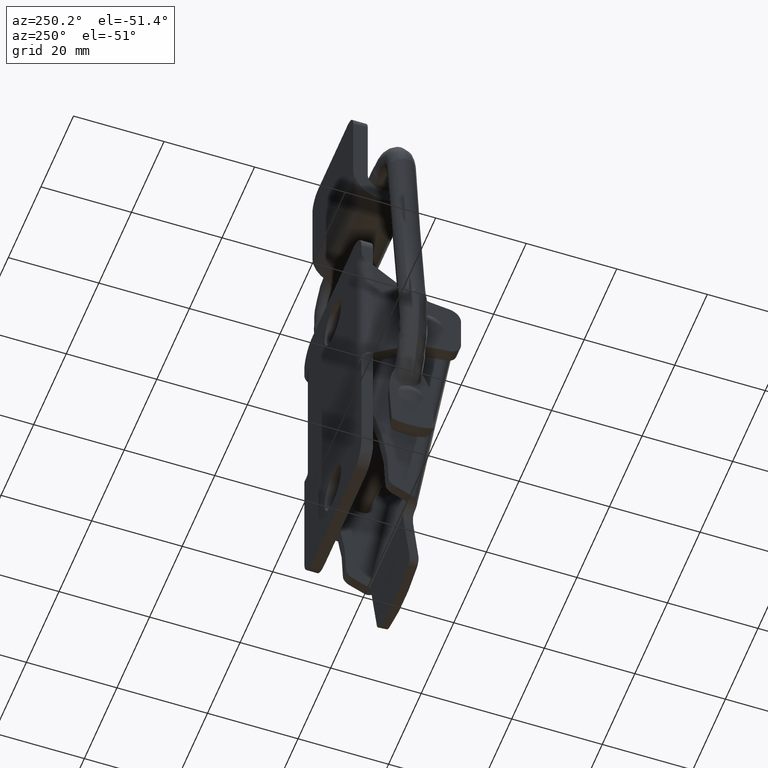
[diagram: clean part render]
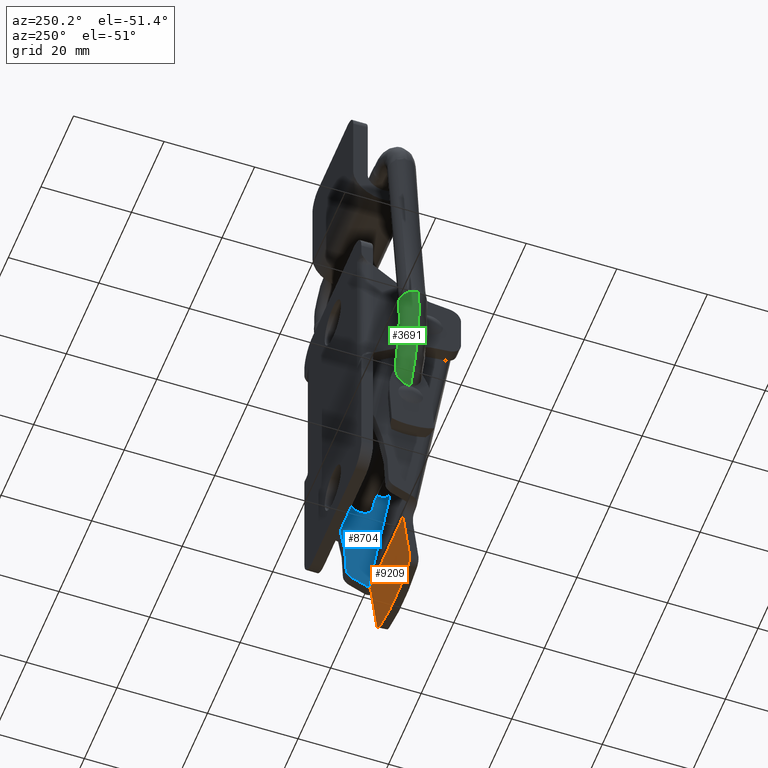
[diagram: same view with three faces highlighted in distinct colors, each labeled with its STEP entity id]
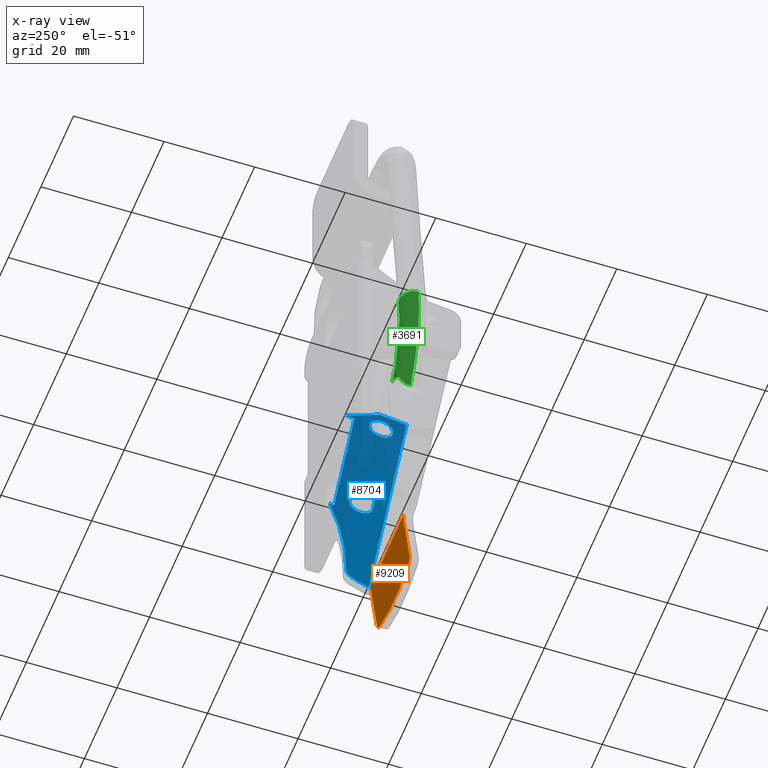
[diagram: x-ray of the same camera — body ghosted, the three highlighted faces saturated]
A machine part, auxiliary view with three faces highlighted in distinct colors.
The next image is the same camera in x-ray (body ghosted, the three faces saturated) — at least one of them is partly hidden behind the body in this view.
Their STEP definitions:

[orange] entity #9209 — the highlighted face is a freeform B-spline surface patch.
#6724=CARTESIAN_POINT('',(-16.485906877645100,10.0,-118.138815475347600));
#6725=VERTEX_POINT('',#6724);
#6731=CARTESIAN_POINT('',(-16.983020094316050,8.571428571428358,-119.989855139310390));
#6732=VERTEX_POINT('',#6731);
#6733=CARTESIAN_POINT('',(-16.983020094316050,8.571428571428358,-119.989855139310390));
#6734=CARTESIAN_POINT('',(-16.872550490607612,9.999999999999998,-119.578512991764580));
#6735=CARTESIAN_POINT('',(-16.485906877645100,10.0,-118.138815475347600));
#6743=(BOUNDED_CURVE()B_SPLINE_CURVE(2,(#6733,#6734,#6735),.UNSPECIFIED.,.F.,.U.)CURVE()GEOMETRIC_REPRESENTATION_ITEM()QUASI_UNIFORM_CURVE()RATIONAL_B_SPLINE_CURVE((1.0,0.801783725737266,1.0))REPRESENTATION_ITEM(''));
#6744=EDGE_CURVE('',#6732,#6725,#6743,.T.);
#6785=CARTESIAN_POINT('',(-16.983020094316050,-8.571428571428401,-119.989855139310390));
#6786=VERTEX_POINT('',#6785);
#6792=CARTESIAN_POINT('',(-16.485906877645149,-10.0,-118.138815475347800));
#6793=VERTEX_POINT('',#6792);
#6794=CARTESIAN_POINT('',(-16.485906877645149,-10.0,-118.138815475347800));
#6795=CARTESIAN_POINT('',(-16.872550490607622,-9.999999999999748,-119.578512991764630));
#6796=CARTESIAN_POINT('',(-16.983020094316050,-8.571428571428401,-119.989855139310390));
#6804=(BOUNDED_CURVE()B_SPLINE_CURVE(2,(#6794,#6795,#6796),.UNSPECIFIED.,.F.,.U.)CURVE()GEOMETRIC_REPRESENTATION_ITEM()QUASI_UNIFORM_CURVE()RATIONAL_B_SPLINE_CURVE((1.0,0.801783725737323,1.0))REPRESENTATION_ITEM(''));
#6805=EDGE_CURVE('',#6793,#6786,#6804,.T.);
#6829=CARTESIAN_POINT('',(-16.983020094316029,-8.571428571428434,-119.989855139310510));
#6830=CARTESIAN_POINT('',(-17.645837716544722,-2.775558E-014,-122.457908024594860));
#6831=CARTESIAN_POINT('',(-16.983020094316039,8.571428571428395,-119.989855139310510));
#6839=(BOUNDED_CURVE()B_SPLINE_CURVE(2,(#6829,#6830,#6831),.UNSPECIFIED.,.F.,.U.)CURVE()GEOMETRIC_REPRESENTATION_ITEM()QUASI_UNIFORM_CURVE()RATIONAL_B_SPLINE_CURVE((1.0,0.958314847499911,1.0))REPRESENTATION_ITEM(''));
#6840=EDGE_CURVE('',#6786,#6732,#6839,.T.);
#6874=CARTESIAN_POINT('',(-13.745348477425440,10.0,-107.934133463108000));
#6875=VERTEX_POINT('',#6874);
#6876=CARTESIAN_POINT('',(-13.334221545876860,10.304535440719620,-106.403270408781200));
#6877=VERTEX_POINT('',#6876);
#6878=CARTESIAN_POINT('',(-13.745348477425480,10.0,-107.934133463108000));
#6879=CARTESIAN_POINT('',(-13.531650173245616,10.0,-107.138411233457450));
#6880=CARTESIAN_POINT('',(-13.334221545876879,10.304535440719640,-106.403270408781200));
#6888=(BOUNDED_CURVE()B_SPLINE_CURVE(2,(#6878,#6879,#6880),.UNSPECIFIED.,.F.,.U.)CURVE()GEOMETRIC_REPRESENTATION_ITEM()QUASI_UNIFORM_CURVE()RATIONAL_B_SPLINE_CURVE((1.0,0.980781866629900,1.0))REPRESENTATION_ITEM(''));
#6889=EDGE_CURVE('',#6875,#6877,#6888,.T.);
#7011=CARTESIAN_POINT('',(-13.334221545876860,-10.304535440719620,-106.403270408781200));
#7012=VERTEX_POINT('',#7011);
#7111=CARTESIAN_POINT('',(-13.745348477425440,-10.0,-107.934133463108000));
#7112=VERTEX_POINT('',#7111);
#7118=CARTESIAN_POINT('',(-13.334221545876890,-10.304535440719620,-106.403270408781300));
#7119=CARTESIAN_POINT('',(-13.531650173245628,-10.0,-107.138411233457460));
#7120=CARTESIAN_POINT('',(-13.745348477425480,-10.0,-107.934133463108000));
#7128=(BOUNDED_CURVE()B_SPLINE_CURVE(2,(#7118,#7119,#7120),.UNSPECIFIED.,.F.,.U.)CURVE()GEOMETRIC_REPRESENTATION_ITEM()QUASI_UNIFORM_CURVE()RATIONAL_B_SPLINE_CURVE((1.0,0.980781866629906,1.0))REPRESENTATION_ITEM(''));
#7129=EDGE_CURVE('',#7012,#7112,#7128,.T.);
#7748=CARTESIAN_POINT('',(-13.334221545876860,10.304535440719620,-106.403270408781200));
#7749=CARTESIAN_POINT('',(-13.334221545876860,-10.304535440719620,-106.403270408781200));
#7750=QUASI_UNIFORM_CURVE('',1,(#7748,#7749),.UNSPECIFIED.,.F.,.U.);
#7751=EDGE_CURVE('',#6877,#7012,#7750,.T.);
#9165=CARTESIAN_POINT('',(-13.745348477425440,-10.0,-107.934133463108000));
#9166=CARTESIAN_POINT('',(-16.485906877645149,-10.0,-118.138815475347800));
#9167=QUASI_UNIFORM_CURVE('',1,(#9165,#9166),.UNSPECIFIED.,.F.,.U.);
#9168=EDGE_CURVE('',#7112,#6793,#9167,.T.);
#9179=CARTESIAN_POINT('',(-13.745348477425440,10.0,-107.934133463108000));
#9180=CARTESIAN_POINT('',(-16.485906877645100,10.0,-118.138815475347600));
#9181=QUASI_UNIFORM_CURVE('',1,(#9179,#9180),.UNSPECIFIED.,.F.,.U.);
#9182=EDGE_CURVE('',#6875,#6725,#9181,.T.);
#9194=CARTESIAN_POINT('',(-13.135761642037441,-11.333959071692769,-105.664289546086000));
#9195=CARTESIAN_POINT('',(-17.505834185407050,-11.333959071692769,-121.936594004889500));
#9196=CARTESIAN_POINT('',(-13.135761642037441,11.333959071692769,-105.664289546086000));
#9197=CARTESIAN_POINT('',(-17.505834185407050,11.333959071692769,-121.936594004889500));
#9198=B_SPLINE_SURFACE_WITH_KNOTS('',1,1,((#9194,#9196),(#9195,#9197)),.UNSPECIFIED.,.F.,.F.,.U.,(2,2),(2,2),(0.0,16.848899858278831),(0.0,22.667918143385538),.UNSPECIFIED.);
#9199=ORIENTED_EDGE('',*,*,#9168,.T.);
#9200=ORIENTED_EDGE('',*,*,#6805,.T.);
#9201=ORIENTED_EDGE('',*,*,#6840,.T.);
#9202=ORIENTED_EDGE('',*,*,#6744,.T.);
#9203=ORIENTED_EDGE('',*,*,#9182,.F.);
#9204=ORIENTED_EDGE('',*,*,#6889,.T.);
#9205=ORIENTED_EDGE('',*,*,#7751,.T.);
#9206=ORIENTED_EDGE('',*,*,#7129,.T.);
#9207=EDGE_LOOP('',(#9199,#9200,#9201,#9202,#9203,#9204,#9205,#9206));
#9208=FACE_OUTER_BOUND('',#9207,.T.);
#9209=ADVANCED_FACE('',(#9208),#9198,.T.);

[blue] entity #8704 — the highlighted face is a freeform B-spline surface patch.
#6529=CARTESIAN_POINT('',(-10.881824768468690,-12.0,-49.893110989245933));
#6530=VERTEX_POINT('',#6529);
#6531=CARTESIAN_POINT('',(-8.300000000000001,-12.0,-52.799999999999997));
#6532=VERTEX_POINT('',#6531);
#6533=CARTESIAN_POINT('',(-10.881824768468690,-12.000000000000004,-49.893110989245933));
#6534=CARTESIAN_POINT('',(-10.900000000000004,-11.999999999999998,-50.046017288251711));
#6535=CARTESIAN_POINT('',(-10.900000000000000,-12.0,-50.200000000000003));
#6536=CARTESIAN_POINT('',(-10.900000000000000,-12.0,-52.799999999999990));
#6537=CARTESIAN_POINT('',(-8.300000000000001,-12.0,-52.799999999999997));
#6545=(BOUNDED_CURVE()B_SPLINE_CURVE(2,(#6533,#6534,#6535,#6536,#6537),.UNSPECIFIED.,.F.,.U.)B_SPLINE_CURVE_WITH_KNOTS((3,2,3),(0.229562473431006,0.250000000000000,0.500000000000000),.UNSPECIFIED.)CURVE()GEOMETRIC_REPRESENTATION_ITEM()RATIONAL_B_SPLINE_CURVE((0.956026754021991,0.976055948234488,1.0,0.707106781186548,1.0))REPRESENTATION_ITEM(''));
#6546=EDGE_CURVE('',#6530,#6532,#6545,.T.);
#6587=CARTESIAN_POINT('',(-5.704849524143498,-12.0,-50.358726203450367));
#6588=VERTEX_POINT('',#6587);
#6594=CARTESIAN_POINT('',(-8.300000000000001,-12.0,-52.799999999999997));
#6595=CARTESIAN_POINT('',(-5.854164227291096,-12.000000000000002,-52.799999999999983));
#6596=CARTESIAN_POINT('',(-5.704849524143498,-12.000000000000002,-50.358726203450374));
#6604=(BOUNDED_CURVE()B_SPLINE_CURVE(2,(#6594,#6595,#6596),.UNSPECIFIED.,.F.,.U.)B_SPLINE_CURVE_WITH_KNOTS((3,3),(0.500000000000000,0.739332962154237),.UNSPECIFIED.)CURVE()GEOMETRIC_REPRESENTATION_ITEM()RATIONAL_B_SPLINE_CURVE((1.0,0.719603993385949,0.976072041485177))REPRESENTATION_ITEM(''));
#6605=EDGE_CURVE('',#6532,#6588,#6604,.T.);
#6628=CARTESIAN_POINT('',(-8.300000000000001,-12.0,-47.600000000000001));
#6629=VERTEX_POINT('',#6628);
#6630=CARTESIAN_POINT('',(-8.300000000000001,-12.0,-47.600000000000001));
#6631=CARTESIAN_POINT('',(-10.609253766308923,-12.0,-47.600000000000001));
#6632=CARTESIAN_POINT('',(-10.881824768468691,-12.000000000000005,-49.893110989245933));
#6640=(BOUNDED_CURVE()B_SPLINE_CURVE(2,(#6630,#6631,#6632),.UNSPECIFIED.,.F.,.U.)B_SPLINE_CURVE_WITH_KNOTS((3,3),(0.0,0.229562473431006),.UNSPECIFIED.)CURVE()GEOMETRIC_REPRESENTATION_ITEM()RATIONAL_B_SPLINE_CURVE((1.0,0.731050832952060,0.956026754021991))REPRESENTATION_ITEM(''));
#6641=EDGE_CURVE('',#6629,#6530,#6640,.T.);
#6643=CARTESIAN_POINT('',(-5.704849524143498,-12.000000000000002,-50.358726203450381));
#6644=CARTESIAN_POINT('',(-5.700000000000000,-12.000000000000004,-50.279437185237938));
#6645=CARTESIAN_POINT('',(-5.700000000000000,-12.0,-50.200000000000003));
#6646=CARTESIAN_POINT('',(-5.699999999999999,-12.0,-47.600000000000001));
#6647=CARTESIAN_POINT('',(-8.300000000000001,-12.0,-47.600000000000001));
#6655=(BOUNDED_CURVE()B_SPLINE_CURVE(2,(#6643,#6644,#6645,#6646,#6647),.UNSPECIFIED.,.F.,.U.)B_SPLINE_CURVE_WITH_KNOTS((3,2,3),(0.739332962154238,0.750000000000000,1.0),.UNSPECIFIED.)CURVE()GEOMETRIC_REPRESENTATION_ITEM()RATIONAL_B_SPLINE_CURVE((0.976072041485178,0.987502787800599,1.0,0.707106781186548,1.0))REPRESENTATION_ITEM(''));
#6656=EDGE_CURVE('',#6588,#6629,#6655,.T.);
#7209=CARTESIAN_POINT('',(-7.857875644552469,-12.0,-100.836162001379190));
#7210=VERTEX_POINT('',#7209);
#7211=CARTESIAN_POINT('',(-9.659620469921661,-12.0,-102.911410402462390));
#7212=VERTEX_POINT('',#7211);
#7213=CARTESIAN_POINT('',(-7.857875644552457,-12.0,-100.836162001379190));
#7214=CARTESIAN_POINT('',(-8.076036906268211,-11.999999999999998,-102.466520682688470));
#7215=CARTESIAN_POINT('',(-9.659620469921638,-12.0,-102.911410402462490));
#7223=(BOUNDED_CURVE()B_SPLINE_CURVE(2,(#7213,#7214,#7215),.UNSPECIFIED.,.F.,.U.)CURVE()GEOMETRIC_REPRESENTATION_ITEM()QUASI_UNIFORM_CURVE()RATIONAL_B_SPLINE_CURVE((1.0,0.835393551760046,1.0))REPRESENTATION_ITEM(''));
#7224=EDGE_CURVE('',#7210,#7212,#7223,.T.);
#7513=CARTESIAN_POINT('',(-5.200000000000000,-12.0,-72.700000000000003));
#7514=VERTEX_POINT('',#7513);
#7539=CARTESIAN_POINT('',(-10.400000000000000,-12.0,-72.700000000000003));
#7540=VERTEX_POINT('',#7539);
#7546=CARTESIAN_POINT('',(-5.200000000000000,-12.0,-72.700000000000003));
#7547=CARTESIAN_POINT('',(-5.199999999999999,-12.0,-70.099999999999994));
#7548=CARTESIAN_POINT('',(-7.800000000000000,-12.0,-70.099999999999994));
#7549=CARTESIAN_POINT('',(-10.400000000000000,-12.0,-70.099999999999994));
#7550=CARTESIAN_POINT('',(-10.400000000000000,-12.0,-72.700000000000003));
#7558=(BOUNDED_CURVE()B_SPLINE_CURVE(2,(#7546,#7547,#7548,#7549,#7550),.UNSPECIFIED.,.F.,.U.)B_SPLINE_CURVE_WITH_KNOTS((3,2,3),(0.0,0.500000000000000,1.0),.UNSPECIFIED.)CURVE()GEOMETRIC_REPRESENTATION_ITEM()RATIONAL_B_SPLINE_CURVE((1.0,0.707106781186548,1.0,0.707106781186548,1.0))REPRESENTATION_ITEM(''));
#7559=EDGE_CURVE('',#7514,#7540,#7558,.T.);
#7577=CARTESIAN_POINT('',(-10.400000000000000,-12.0,-77.700000000000003));
#7578=VERTEX_POINT('',#7577);
#7584=CARTESIAN_POINT('',(-10.400000000000000,-12.0,-72.700000000000003));
#7585=CARTESIAN_POINT('',(-10.400000000000000,-12.0,-77.700000000000003));
#7586=QUASI_UNIFORM_CURVE('',1,(#7584,#7585),.UNSPECIFIED.,.F.,.U.);
#7587=EDGE_CURVE('',#7540,#7578,#7586,.T.);
#7628=CARTESIAN_POINT('',(-5.200000000000000,-12.0,-77.700000000000003));
#7629=VERTEX_POINT('',#7628);
#7635=CARTESIAN_POINT('',(-10.400000000000000,-12.0,-77.700000000000003));
#7636=CARTESIAN_POINT('',(-10.400000000000000,-12.0,-80.300000000000011));
#7637=CARTESIAN_POINT('',(-7.800000000000000,-12.0,-80.300000000000011));
#7638=CARTESIAN_POINT('',(-5.199999999999999,-12.0,-80.300000000000011));
#7639=CARTESIAN_POINT('',(-5.200000000000000,-12.0,-77.700000000000003));
#7647=(BOUNDED_CURVE()B_SPLINE_CURVE(2,(#7635,#7636,#7637,#7638,#7639),.UNSPECIFIED.,.F.,.U.)B_SPLINE_CURVE_WITH_KNOTS((3,2,3),(0.0,0.500000000000000,1.0),.UNSPECIFIED.)CURVE()GEOMETRIC_REPRESENTATION_ITEM()RATIONAL_B_SPLINE_CURVE((1.0,0.707106781186548,1.0,0.707106781186548,1.0))REPRESENTATION_ITEM(''));
#7648=EDGE_CURVE('',#7578,#7629,#7647,.T.);
#7665=CARTESIAN_POINT('',(-5.200000000000000,-12.0,-77.700000000000003));
#7666=CARTESIAN_POINT('',(-5.200000000000000,-12.0,-72.700000000000003));
#7667=QUASI_UNIFORM_CURVE('',1,(#7665,#7666),.UNSPECIFIED.,.F.,.U.);
#7668=EDGE_CURVE('',#7629,#7514,#7667,.T.);
#7868=CARTESIAN_POINT('',(-0.299999999999955,-12.0,-50.200000000000003));
#7869=VERTEX_POINT('',#7868);
#8126=CARTESIAN_POINT('',(-2.299999999999955,-12.0,-81.199999999999989));
#8127=VERTEX_POINT('',#8126);
#8133=CARTESIAN_POINT('',(-2.299999999999970,-12.0,-50.200000000000003));
#8134=VERTEX_POINT('',#8133);
#8135=CARTESIAN_POINT('',(-2.299999999999955,-12.0,-81.199999999999989));
#8136=CARTESIAN_POINT('',(-2.299999999999970,-12.0,-50.200000000000003));
#8137=QUASI_UNIFORM_CURVE('',1,(#8135,#8136),.UNSPECIFIED.,.F.,.U.);
#8138=EDGE_CURVE('',#8127,#8134,#8137,.T.);
#8155=CARTESIAN_POINT('',(-0.299999999999955,-12.0,-50.200000000000003));
#8156=CARTESIAN_POINT('',(-2.299999999999970,-12.0,-50.200000000000003));
#8157=QUASI_UNIFORM_CURVE('',1,(#8155,#8156),.UNSPECIFIED.,.F.,.U.);
#8158=EDGE_CURVE('',#7869,#8134,#8157,.T.);
#8636=CARTESIAN_POINT('',(-13.949350218872880,-12.0,-42.791205693047182));
#8637=CARTESIAN_POINT('',(0.349350335101979,-12.0,-42.791205693047182));
#8638=CARTESIAN_POINT('',(-13.949350218872880,-12.0,-106.842929852675700));
#8639=CARTESIAN_POINT('',(0.349350335101979,-12.0,-106.842929852675700));
#8640=B_SPLINE_SURFACE_WITH_KNOTS('',1,1,((#8636,#8638),(#8637,#8639)),.UNSPECIFIED.,.F.,.F.,.U.,(2,2),(2,2),(0.0,14.298700553974861),(0.0,64.051724159628563),.UNSPECIFIED.);
#8641=CARTESIAN_POINT('',(-1.301293410527386,-12.0,-81.199999999999989));
#8642=VERTEX_POINT('',#8641);
#8643=CARTESIAN_POINT('',(-1.301293410527343,-12.0,-81.199999999999989));
#8644=CARTESIAN_POINT('',(-6.460079420146557,-11.999999999999996,-90.390177268627610));
#8645=CARTESIAN_POINT('',(-7.857875644552433,-12.0,-100.836162001379190));
#8653=(BOUNDED_CURVE()B_SPLINE_CURVE(2,(#8643,#8644,#8645),.UNSPECIFIED.,.F.,.U.)CURVE()GEOMETRIC_REPRESENTATION_ITEM()QUASI_UNIFORM_CURVE()RATIONAL_B_SPLINE_CURVE((1.0,0.982147119270524,1.0))REPRESENTATION_ITEM(''));
#8654=EDGE_CURVE('',#8642,#7210,#8653,.T.);
#8655=ORIENTED_EDGE('',*,*,#8654,.T.);
#8656=ORIENTED_EDGE('',*,*,#7224,.T.);
#8657=CARTESIAN_POINT('',(-13.300000000000001,-12.0,-103.934133463108000));
#8658=VERTEX_POINT('',#8657);
#8659=CARTESIAN_POINT('',(-13.300000000000001,-12.0,-103.934133463108000));
#8660=CARTESIAN_POINT('',(-9.659620469921661,-12.0,-102.911410402462390));
#8661=QUASI_UNIFORM_CURVE('',1,(#8659,#8660),.UNSPECIFIED.,.F.,.U.);
#8662=EDGE_CURVE('',#8658,#7212,#8661,.T.);
#8663=ORIENTED_EDGE('',*,*,#8662,.F.);
#8664=CARTESIAN_POINT('',(-13.300000000000001,-12.0,-45.700000000000003));
#8665=VERTEX_POINT('',#8664);
#8666=CARTESIAN_POINT('',(-13.300000000000001,-12.0,-45.700000000000003));
#8667=CARTESIAN_POINT('',(-13.300000000000001,-12.0,-103.934133463108000));
#8668=QUASI_UNIFORM_CURVE('',1,(#8666,#8667),.UNSPECIFIED.,.F.,.U.);
#8669=EDGE_CURVE('',#8665,#8658,#8668,.T.);
#8670=ORIENTED_EDGE('',*,*,#8669,.F.);
#8671=CARTESIAN_POINT('',(-7.300000000000201,-12.0,-45.700000000000003));
#8672=VERTEX_POINT('',#8671);
#8673=CARTESIAN_POINT('',(-7.300000000000201,-12.0,-45.700000000000003));
#8674=CARTESIAN_POINT('',(-13.300000000000001,-12.0,-45.700000000000003));
#8675=QUASI_UNIFORM_CURVE('',1,(#8673,#8674),.UNSPECIFIED.,.F.,.U.);
#8676=EDGE_CURVE('',#8672,#8665,#8675,.T.);
#8677=ORIENTED_EDGE('',*,*,#8676,.F.);
#8678=CARTESIAN_POINT('',(-0.299999999999955,-12.0,-50.200000000000003));
#8679=CARTESIAN_POINT('',(-7.300000000000201,-12.0,-45.700000000000003));
#8680=QUASI_UNIFORM_CURVE('',1,(#8678,#8679),.UNSPECIFIED.,.F.,.U.);
#8681=EDGE_CURVE('',#7869,#8672,#8680,.T.);
#8682=ORIENTED_EDGE('',*,*,#8681,.F.);
#8683=ORIENTED_EDGE('',*,*,#8158,.T.);
#8684=ORIENTED_EDGE('',*,*,#8138,.F.);
#8685=CARTESIAN_POINT('',(-2.299999999999955,-12.0,-81.199999999999989));
#8686=CARTESIAN_POINT('',(-1.301293410527386,-12.0,-81.199999999999989));
#8687=QUASI_UNIFORM_CURVE('',1,(#8685,#8686),.UNSPECIFIED.,.F.,.U.);
#8688=EDGE_CURVE('',#8127,#8642,#8687,.T.);
#8689=ORIENTED_EDGE('',*,*,#8688,.T.);
#8690=EDGE_LOOP('',(#8655,#8656,#8663,#8670,#8677,#8682,#8683,#8684,#8689));
#8691=FACE_OUTER_BOUND('',#8690,.T.);
#8692=ORIENTED_EDGE('',*,*,#7668,.T.);
#8693=ORIENTED_EDGE('',*,*,#7559,.T.);
#8694=ORIENTED_EDGE('',*,*,#7587,.T.);
#8695=ORIENTED_EDGE('',*,*,#7648,.T.);
#8696=EDGE_LOOP('',(#8692,#8693,#8694,#8695));
#8697=FACE_BOUND('',#8696,.T.);
#8698=ORIENTED_EDGE('',*,*,#6605,.T.);
#8699=ORIENTED_EDGE('',*,*,#6656,.T.);
#8700=ORIENTED_EDGE('',*,*,#6641,.T.);
#8701=ORIENTED_EDGE('',*,*,#6546,.T.);
#8702=EDGE_LOOP('',(#8698,#8699,#8700,#8701));
#8703=FACE_BOUND('',#8702,.T.);
#8704=ADVANCED_FACE('',(#8691,#8697,#8703),#8640,.T.);

[green] entity #3691 — the highlighted face is a freeform B-spline surface patch.
#1718=CARTESIAN_POINT('',(-0.935499677438670,24.800325475195340,-51.094865103629928));
#1719=VERTEX_POINT('',#1718);
#1725=CARTESIAN_POINT('',(-3.025687837047648,25.495195464436769,-50.977700852619549));
#1726=VERTEX_POINT('',#1725);
#1727=CARTESIAN_POINT('',(-0.935499677438670,24.800325475195340,-51.094865103629928));
#1728=CARTESIAN_POINT('',(-1.512385175853116,25.282578525916101,-51.062528130984767));
#1729=CARTESIAN_POINT('',(-2.275123317153776,25.537342183797801,-51.019773299257487));
#1730=CARTESIAN_POINT('',(-3.025687837047648,25.495195464436769,-50.977700852619549));
#1731=B_SPLINE_CURVE_WITH_KNOTS('',3,(#1727,#1728,#1729,#1730),.UNSPECIFIED.,.F.,.U.,(4,4),(0.880169752441983,1.0),.UNSPECIFIED.);
#1732=EDGE_CURVE('',#1719,#1726,#1731,.T.);
#1734=CARTESIAN_POINT('',(-3.621912348611763,19.601888854293168,-50.944279843123162));
#1735=VERTEX_POINT('',#1734);
#1749=CARTESIAN_POINT('',(-2.690414874447762,19.504599597252149,-50.996494378631262));
#1750=VERTEX_POINT('',#1749);
#1751=CARTESIAN_POINT('',(-3.621912348611763,19.601888854293168,-50.944279843123162));
#1752=CARTESIAN_POINT('',(-3.318883996260429,19.521128023256651,-50.961265916733304));
#1753=CARTESIAN_POINT('',(-3.003589797423610,19.487017205818180,-50.978939545054651));
#1754=CARTESIAN_POINT('',(-2.690414874447762,19.504599597252149,-50.996494378631262));
#1755=B_SPLINE_CURVE_WITH_KNOTS('',3,(#1751,#1752,#1753,#1754),.UNSPECIFIED.,.F.,.U.,(4,4),(0.450000050397062,0.500000000000000),.UNSPECIFIED.);
#1756=EDGE_CURVE('',#1735,#1750,#1755,.T.);
#1758=CARTESIAN_POINT('',(0.137091185417635,22.484627194959842,-51.154988544914097));
#1759=VERTEX_POINT('',#1758);
#1760=CARTESIAN_POINT('',(-2.690414874447762,19.504599597252149,-50.996494378631262));
#1761=CARTESIAN_POINT('',(-1.907460554739002,19.548555499213141,-51.040382416185359));
#1762=CARTESIAN_POINT('',(-1.147387956426161,19.915053214163251,-51.082987832489863));
#1763=CARTESIAN_POINT('',(-0.142828733817112,21.040636085045598,-51.139297800743883));
#1764=CARTESIAN_POINT('',(0.131697788055595,21.760824593901710,-51.154686221240809));
#1765=CARTESIAN_POINT('',(0.137091185417635,22.484627194959842,-51.154988544914097));
#1766=B_SPLINE_CURVE_WITH_KNOTS('',3,(#1760,#1761,#1762,#1763,#1764,#1765),.UNSPECIFIED.,.F.,.U.,(4,2,4),(0.500000000000000,0.625000000000000,0.740274489869067),.UNSPECIFIED.);
#1767=EDGE_CURVE('',#1750,#1759,#1766,.T.);
#1863=CARTESIAN_POINT('',(0.137091185417635,22.484627194959842,-51.154988544914097));
#1864=CARTESIAN_POINT('',(0.137542921443059,22.545693789744909,-51.155013866707662));
#1865=CARTESIAN_POINT('',(0.136078972600894,22.606786118516059,-51.154931805928193));
#1866=CARTESIAN_POINT('',(0.088748301403157,23.451973335780249,-51.152278713375132));
#1867=CARTESIAN_POINT('',(-0.277206232994768,24.213225952187379,-51.131765350150232));
#1868=CARTESIAN_POINT('',(-0.886067712131112,24.758289657038301,-51.097635982971397));
#1869=CARTESIAN_POINT('',(-0.910610740312424,24.779519274449960,-51.096260238160490));
#1870=CARTESIAN_POINT('',(-0.935499677438670,24.800325475195340,-51.094865103629928));
#1871=B_SPLINE_CURVE_WITH_KNOTS('',3,(#1863,#1864,#1865,#1866,#1867,#1868,#1869,#1870),.UNSPECIFIED.,.F.,.U.,(4,2,2,4),(0.740274489869067,0.750000000000000,0.875000000000000,0.880169752441983),.UNSPECIFIED.);
#1872=EDGE_CURVE('',#1759,#1719,#1871,.T.);
#3462=CARTESIAN_POINT('',(-4.606054129218218,12.443610059709830,-68.501175558567866));
#3463=CARTESIAN_POINT('',(-4.299868027802160,12.385830207739410,-68.461824808381081));
#3464=CARTESIAN_POINT('',(-3.983239698379888,12.361425782323220,-68.455703523965539));
#3465=CARTESIAN_POINT('',(-2.889532649895598,12.405453055198990,-68.560073205575407));
#3466=CARTESIAN_POINT('',(-2.143813323351211,12.667661592551580,-68.858337307139720));
#3467=CARTESIAN_POINT('',(-1.144431664782217,13.505548302726710,-69.733884707194619));
#3468=CARTESIAN_POINT('',(-0.896923357829739,14.076066909353470,-70.305776531261202));
#3469=CARTESIAN_POINT('',(-1.046022902986436,15.198121554507070,-71.394887993762595));
#3470=CARTESIAN_POINT('',(-1.441712625038618,15.742748168232181,-71.905401066003392));
#3471=CARTESIAN_POINT('',(-2.651952882511845,16.491686354957270,-72.570089867154095));
#3472=CARTESIAN_POINT('',(-3.459050960882161,16.691386091889690,-72.720172553618980));
#3473=CARTESIAN_POINT('',(-4.240270281228082,16.659938039835559,-72.645622781040558));
#3474=CARTESIAN_POINT('',(-4.476328769300759,14.707131532671269,-66.186899583156290));
#3475=CARTESIAN_POINT('',(-4.170559655565141,14.642075840893471,-66.154987814613833));
#3476=CARTESIAN_POINT('',(-3.854107448864278,14.614598325399561,-66.152008526355445));
#3477=CARTESIAN_POINT('',(-2.760082662802348,14.664169665539520,-66.250709829416351));
#3478=CARTESIAN_POINT('',(-2.012471020403718,14.959396413345051,-66.515215372743882));
#3479=CARTESIAN_POINT('',(-1.007042471372349,15.902792730653941,-67.282887386430573));
#3480=CARTESIAN_POINT('',(-0.755416825549507,16.545153023415331,-67.781326660929523));
#3481=CARTESIAN_POINT('',(-0.896418687035771,17.808500689847669,-68.725976972640836));
#3482=CARTESIAN_POINT('',(-1.288177928469113,18.421708579989620,-69.166371011320209));
#3483=CARTESIAN_POINT('',(-2.493013222329955,19.264955666570881,-69.734636280179558));
#3484=CARTESIAN_POINT('',(-3.298670100573424,19.489802288568889,-69.859008227932534));
#3485=CARTESIAN_POINT('',(-4.080116376332504,19.454394188469671,-69.788507297170852));
#3486=CARTESIAN_POINT('',(-4.321882530955969,16.515964186746150,-63.431607794850862));
#3487=CARTESIAN_POINT('',(-4.016609372836659,16.445102204842438,-63.408543781044067));
#3488=CARTESIAN_POINT('',(-3.700366642474154,16.415172291676509,-63.409301511193078));
#3489=CARTESIAN_POINT('',(-2.605963946592884,16.469167926962019,-63.501260974318747));
#3490=CARTESIAN_POINT('',(-1.856101626974638,16.790743978048901,-63.725614860141469));
#3491=CARTESIAN_POINT('',(-0.843481044638174,17.818339426434139,-64.364982354921068));
#3492=CARTESIAN_POINT('',(-0.586958330068621,18.518031062869650,-64.776058845788114));
#3493=CARTESIAN_POINT('',(-0.718328991678319,19.894133860788429,-65.548890366631809));
#3494=CARTESIAN_POINT('',(-1.105413409297416,20.562071211432450,-65.905886429375300));
#3495=CARTESIAN_POINT('',(-2.303820162980415,21.480579003068978,-66.359467752794657));
#3496=CARTESIAN_POINT('',(-3.107762910730427,21.725493426733369,-66.453259935581869));
#3497=CARTESIAN_POINT('',(-3.889479122073799,21.686925115815150,-66.387574604784106));
#3498=CARTESIAN_POINT('',(-3.985536918523628,18.965499280572018,-57.431265449935857));
#3499=CARTESIAN_POINT('',(-3.681342916627681,18.886778028493591,-57.427453379795907));
#3500=CARTESIAN_POINT('',(-3.365555988533096,18.853528602274910,-57.436342536512157));
#3501=CARTESIAN_POINT('',(-2.270330993806240,18.913512868902650,-57.513632343206403));
#3502=CARTESIAN_POINT('',(-1.515571396585850,19.270754773511349,-57.650619719467400));
#3503=CARTESIAN_POINT('',(-0.487301576204740,20.412320365600749,-58.010807756480098));
#3504=CARTESIAN_POINT('',(-0.220123266585408,21.189614483124650,-58.231790439567398));
#3505=CARTESIAN_POINT('',(-0.330537276147033,22.718340216311798,-58.630759236958198));
#3506=CARTESIAN_POINT('',(-0.707449684329967,23.460358194653349,-58.806288568159601));
#3507=CARTESIAN_POINT('',(-1.891868494508950,24.480737267600450,-59.010327615388199));
#3508=CARTESIAN_POINT('',(-2.692081443607044,24.752815038568350,-59.037580893071400));
#3509=CARTESIAN_POINT('',(-3.474385011269478,24.709969133834250,-58.982373888283497));
#3510=CARTESIAN_POINT('',(-3.803774639958204,19.601861626592839,-54.188660555122937));
#3511=CARTESIAN_POINT('',(-3.500163412379983,19.521100876656579,-54.195245069154232));
#3512=CARTESIAN_POINT('',(-3.184622630162991,19.486990029314409,-54.208525422010702));
#3513=CARTESIAN_POINT('',(-2.088953571233795,19.548528359468449,-54.277893206879597));
#3514=CARTESIAN_POINT('',(-1.331549308160476,19.915025632616999,-54.367700241960200));
#3515=CARTESIAN_POINT('',(-0.294828464812836,21.086166710303349,-54.577123619450312));
#3516=CARTESIAN_POINT('',(-0.021895838057472,21.883598813085300,-54.695450367714898));
#3517=CARTESIAN_POINT('',(-0.120992673739335,23.451930437453900,-54.892522912846097));
#3518=CARTESIAN_POINT('',(-0.492411914436921,24.213172437426351,-54.970055169940800));
#3519=CARTESIAN_POINT('',(-1.669276846797925,25.259987226071601,-55.039334458552098));
#3520=CARTESIAN_POINT('',(-2.467475601080070,25.539113913862799,-55.030654879825001));
#3521=CARTESIAN_POINT('',(-3.250096357459762,25.495157969165351,-54.981106462070898));
#3522=CARTESIAN_POINT('',(-3.621912806763675,19.601888976396442,-50.944279817441732));
#3523=CARTESIAN_POINT('',(-3.318884631857126,19.521128092020170,-50.961265881105298));
#3524=CARTESIAN_POINT('',(-3.003590113085849,19.487017188096150,-50.978939527360389));
#3525=CARTESIAN_POINT('',(-1.907476777852545,19.548555620142150,-51.040381506808401));
#3526=CARTESIAN_POINT('',(-1.147426585740190,19.915053502110752,-51.082985667146687));
#3527=CARTESIAN_POINT('',(-0.102250682918359,21.086196546151299,-51.141572379192297));
#3528=CARTESIAN_POINT('',(0.176439009423553,21.883630005272451,-51.157194163727603));
#3529=CARTESIAN_POINT('',(0.088664753069295,23.451964335853500,-51.152274030123102));
#3530=CARTESIAN_POINT('',(-0.277258696439541,24.213207666864150,-51.131762409343096));
#3531=CARTESIAN_POINT('',(-1.446566143024776,25.260024303466651,-51.066217577625302));
#3532=CARTESIAN_POINT('',(-2.242749740452430,25.539151487326802,-51.021587980796703));
#3533=CARTESIAN_POINT('',(-3.025687837047648,25.495195464436769,-50.977700852619549));
#3534=B_SPLINE_SURFACE_WITH_KNOTS('',3,3,((#3462,#3474,#3486,#3498,#3510,#3522),(#3463,#3475,#3487,#3499,#3511,#3523),(#3464,#3476,#3488,#3500,#3512,#3524),(#3465,#3477,#3489,#3501,#3513,#3525),(#3466,#3478,#3490,#3502,#3514,#3526),(#3467,#3479,#3491,#3503,#3515,#3527),(#3468,#3480,#3492,#3504,#3516,#3528),(#3469,#3481,#3493,#3505,#3517,#3529),(#3470,#3482,#3494,#3506,#3518,#3530),(#3471,#3483,#3495,#3507,#3519,#3531),(#3472,#3484,#3496,#3508,#3520,#3532),(#3473,#3485,#3497,#3509,#3521,#3533)),.UNSPECIFIED.,.F.,.F.,.U.,(4,2,2,2,2,4),(4,2,4),(0.0,0.942477796076939,3.298672286269288,5.654866776461637,8.011061266653986,10.367255756846340),(0.0,12.002027326403701,24.031097985978100),.UNSPECIFIED.);
#3535=ORIENTED_EDGE('',*,*,#1756,.F.);
#3536=CARTESIAN_POINT('',(-4.472276102941063,14.499901198776030,-66.114593967504192));
#3537=VERTEX_POINT('',#3536);
#3538=CARTESIAN_POINT('',(-4.472276102941063,14.499901198776030,-66.114593967504192));
#3539=CARTESIAN_POINT('',(-4.374621390290983,15.819889599346240,-64.372454238497227));
#3540=CARTESIAN_POINT('',(-4.267347392807410,16.913132224366869,-62.458708365674042));
#3541=CARTESIAN_POINT('',(-3.985536773258034,18.965498733660969,-57.431265099488058));
#3542=CARTESIAN_POINT('',(-3.803774333309787,19.601861298792290,-54.188660398677847));
#3543=CARTESIAN_POINT('',(-3.621912348611763,19.601888854293168,-50.944279843123162));
#3544=B_SPLINE_CURVE_WITH_KNOTS('',3,(#3538,#3539,#3540,#3541,#3542,#3543),.UNSPECIFIED.,.F.,.U.,(4,2,4),(0.021879333326151,0.067080623230000,0.134161246460000),.UNSPECIFIED.);
#3545=EDGE_CURVE('',#3537,#1735,#3544,.T.);
#3546=ORIENTED_EDGE('',*,*,#3545,.F.);
#3547=CARTESIAN_POINT('',(-0.953501323675438,14.499900000000000,-70.534751486502600));
#3548=VERTEX_POINT('',#3547);
#3549=CARTESIAN_POINT('',(-0.953501323675438,14.499900000000000,-70.534751486502600));
#3550=CARTESIAN_POINT('',(-0.948998288077262,14.499900039436360,-70.293604186915701));
#3551=CARTESIAN_POINT('',(-0.968260000065736,14.499900121501410,-69.814582292407863));
#3552=CARTESIAN_POINT('',(-1.039444655527527,14.499900209430249,-69.341571780479015));
#3553=CARTESIAN_POINT('',(-1.112778437169913,14.499900277629360,-68.989123063946423));
#3554=CARTESIAN_POINT('',(-1.140569414856075,14.499900300740320,-68.872027586265389));
#3555=CARTESIAN_POINT('',(-1.203246215563893,14.499900347763459,-68.638658037141099));
#3556=CARTESIAN_POINT('',(-1.238178378066220,14.499900371690870,-68.522329274280779));
#3557=CARTESIAN_POINT('',(-1.352999894888020,14.499900443841300,-68.179105299947324));
#3558=CARTESIAN_POINT('',(-1.443082545149921,14.499900492709630,-67.956437495082824));
#3559=CARTESIAN_POINT('',(-1.602689276533421,14.499900567401410,-67.633556929235482));
#3560=CARTESIAN_POINT('',(-1.660028888774837,14.499900592533461,-67.527809448143813));
#3561=CARTESIAN_POINT('',(-1.752876096726579,14.499900630619530,-67.372294250405503));
#3562=CARTESIAN_POINT('',(-1.784967951934778,14.499900643379720,-67.320974954627360));
#3563=CARTESIAN_POINT('',(-1.851591898019956,14.499900669038601,-67.219444825127113));
#3564=CARTESIAN_POINT('',(-1.886061718096894,14.499900681911440,-67.169340175374060));
#3565=CARTESIAN_POINT('',(-1.992416022734363,14.499900720407890,-67.022105609009500));
#3566=CARTESIAN_POINT('',(-2.067476860861804,14.499900746006711,-66.927653487570481));
#3567=CARTESIAN_POINT('',(-2.226898386840774,14.499900797058050,-66.747034306616555));
#3568=CARTESIAN_POINT('',(-2.311246657741063,14.499900822510730,-66.660856185072390));
#3569=CARTESIAN_POINT('',(-2.446007900189689,14.499900860560089,-66.538928827514852));
#3570=CARTESIAN_POINT('',(-2.492449270446903,14.499900873258399,-66.499405573040178));
#3571=CARTESIAN_POINT('',(-2.587721141594097,14.499900898424800,-66.423647979387724));
#3572=CARTESIAN_POINT('',(-2.636399979471372,14.499900910855310,-66.387519282691628));
#3573=CARTESIAN_POINT('',(-2.785779207041298,14.499900947657361,-66.284742619370547));
#3574=CARTESIAN_POINT('',(-2.889791315687474,14.499900971544010,-66.223652066657721));
#3575=CARTESIAN_POINT('',(-3.053755788733146,14.499901006210489,-66.145350984524569));
#3576=CARTESIAN_POINT('',(-3.109961706017302,14.499901017613279,-66.121405213498434));
#3577=CARTESIAN_POINT('',(-3.224346304372361,14.499901039784589,-66.078905082537759));
#3578=CARTESIAN_POINT('',(-3.282129848292752,14.499901050479981,-66.060476644523078));
#3579=CARTESIAN_POINT('',(-3.457324572285689,14.499901081348879,-66.013991985965802));
#3580=CARTESIAN_POINT('',(-3.576593156109707,14.499901100296370,-65.994799948155062));
#3581=CARTESIAN_POINT('',(-3.759512204596037,14.499901126066630,-65.985178477655367));
#3582=CARTESIAN_POINT('',(-3.820703526163703,14.499901134149770,-65.985198707155178));
#3583=CARTESIAN_POINT('',(-3.941726331732761,14.499901149119291,-65.991366213429842));
#3584=CARTESIAN_POINT('',(-4.061944317823917,14.499901162971110,-66.003626455568977));
#3585=CARTESIAN_POINT('',(-4.180641407323852,14.499901174710500,-66.027400361904668));
#3586=CARTESIAN_POINT('',(-4.298610411176497,14.499901185438750,-66.056686104940979));
#3587=CARTESIAN_POINT('',(-4.357429508958790,14.499901190308851,-66.074173376247415));
#3588=CARTESIAN_POINT('',(-4.434130984756129,14.499901196063620,-66.100567008302676));
#3589=CARTESIAN_POINT('',(-4.453265951707962,14.499901197448970,-66.107454634670390));
#3590=CARTESIAN_POINT('',(-4.472276102941063,14.499901198776030,-66.114593967504192));
#3591=B_SPLINE_CURVE_WITH_KNOTS('',3,(#3549,#3550,#3551,#3552,#3553,#3554,#3555,#3556,#3557,#3558,#3559,#3560,#3561,#3562,#3563,#3564,#3565,#3566,#3567,#3568,#3569,#3570,#3571,#3572,#3573,#3574,#3575,#3576,#3577,#3578,#3579,#3580,#3581,#3582,#3583,#3584,#3585,#3586,#3587,#3588,#3589,#3590),.UNSPECIFIED.,.F.,.U.,(4,1,2,2,2,2,2,2,2,2,2,2,2,2,2,2,2,2,1,2,2,4),(0.0,0.062499999999998,0.124999999999997,0.156249999999996,0.187499999999995,0.249999999999993,0.281249999999992,0.296874999999992,0.312499999999991,0.343749999999990,0.374999999999990,0.390624999999990,0.406249999999991,0.437499999999991,0.453124999999989,0.468749999999988,0.499999999999987,0.515624999999986,0.531249999999986,0.546874999999985,0.562499999999984,0.567740251465025),.UNSPECIFIED.);
#3592=EDGE_CURVE('',#3548,#3537,#3591,.T.);
#3593=ORIENTED_EDGE('',*,*,#3592,.F.);
#3594=CARTESIAN_POINT('',(-0.783124739999293,17.227265829126900,-67.568165872333807));
#3595=VERTEX_POINT('',#3594);
#3596=CARTESIAN_POINT('',(-0.783124739999293,17.227265829126900,-67.568165872333807));
#3597=CARTESIAN_POINT('',(-0.782391150956482,17.046005273262470,-67.580385489543289));
#3598=CARTESIAN_POINT('',(-0.792712712312285,16.867875044122169,-67.604636187970385));
#3599=CARTESIAN_POINT('',(-0.812744462615362,16.650757173993249,-67.660303255424580));
#3600=CARTESIAN_POINT('',(-0.817100002120794,16.607612233872189,-67.672713649825383));
#3601=CARTESIAN_POINT('',(-0.826313805492622,16.521924375325590,-67.700375227317693));
#3602=CARTESIAN_POINT('',(-0.831191932406649,16.479215435449049,-67.715695451692255));
#3603=CARTESIAN_POINT('',(-0.846119158271829,16.353352058004049,-67.765818850019059));
#3604=CARTESIAN_POINT('',(-0.856384156406984,16.272871389210451,-67.804587995338480));
#3605=CARTESIAN_POINT('',(-0.875996280698348,16.118592306562189,-67.892852941278576));
#3606=CARTESIAN_POINT('',(-0.885341627332459,16.044790991778981,-67.942344500666906));
#3607=CARTESIAN_POINT('',(-0.897946656849583,15.938749857193880,-68.024211038703299));
#3608=CARTESIAN_POINT('',(-0.901917586566536,15.904177645265730,-68.052767395494158));
#3609=CARTESIAN_POINT('',(-0.909332486994547,15.836506259515829,-68.112306620159956));
#3610=CARTESIAN_POINT('',(-0.912786318845337,15.803299474060340,-68.143402470031759));
#3611=CARTESIAN_POINT('',(-0.928474790008912,15.642690184779051,-68.302625061509602));
#3612=CARTESIAN_POINT('',(-0.935996226306919,15.530303406731949,-68.442408083751729));
#3613=CARTESIAN_POINT('',(-0.942344608819202,15.376374582584679,-68.663386204268164));
#3614=CARTESIAN_POINT('',(-0.943657612310114,15.327561936938549,-68.738970383881011));
#3615=CARTESIAN_POINT('',(-0.945199478103341,15.233885746549211,-68.893174984939847));
#3616=CARTESIAN_POINT('',(-0.945428195261373,15.189003255337520,-68.971852979503296));
#3617=CARTESIAN_POINT('',(-0.945238479688415,15.059986510474440,-69.209766286987090));
#3618=CARTESIAN_POINT('',(-0.943988497309152,14.980995307678080,-69.371465773308188));
#3619=CARTESIAN_POINT('',(-0.942470977107975,14.831739584509100,-69.698687545148118));
#3620=CARTESIAN_POINT('',(-0.942189155635774,14.761529246021050,-69.864233730171932));
#3621=CARTESIAN_POINT('',(-0.944926588605394,14.626859063651381,-70.197823717740235));
#3622=CARTESIAN_POINT('',(-0.947935601564417,14.562423087639420,-70.365878080250354));
#3623=CARTESIAN_POINT('',(-0.953501323675426,14.499900000000070,-70.534751486502401));
#3624=B_SPLINE_CURVE_WITH_KNOTS('',3,(#3596,#3597,#3598,#3599,#3600,#3601,#3602,#3603,#3604,#3605,#3606,#3607,#3608,#3609,#3610,#3611,#3612,#3613,#3614,#3615,#3616,#3617,#3618,#3619,#3620,#3621,#3622,#3623),.UNSPECIFIED.,.F.,.U.,(4,2,2,2,2,2,2,2,2,2,2,2,2,4),(0.0,0.124999999999994,0.156249999999991,0.187499999999988,0.249999999999981,0.312499999999973,0.343749999999972,0.374999999999972,0.499999999999983,0.562499999999989,0.624999999999994,0.749999999999996,0.874999999999998,1.0),.UNSPECIFIED.);
#3625=EDGE_CURVE('',#3595,#3548,#3624,.T.);
#3626=ORIENTED_EDGE('',*,*,#3625,.F.);
#3627=CARTESIAN_POINT('',(-0.784322744807737,17.300000000000001,-67.568098718888592));
#3628=VERTEX_POINT('',#3627);
#3629=CARTESIAN_POINT('',(-0.784322744807738,17.300000000000001,-67.568098718888592));
#3630=CARTESIAN_POINT('',(-0.783721451866140,17.275727871642829,-67.568132424005910));
#3631=CARTESIAN_POINT('',(-0.783323271113409,17.251483304635631,-67.568154743790657));
#3632=CARTESIAN_POINT('',(-0.783124739999296,17.227265829126910,-67.568165872333878));
#3633=QUASI_UNIFORM_CURVE('',3,(#3629,#3630,#3631,#3632),.UNSPECIFIED.,.F.,.U.);
#3634=EDGE_CURVE('',#3628,#3595,#3633,.T.);
#3635=ORIENTED_EDGE('',*,*,#3634,.F.);
#3636=CARTESIAN_POINT('',(-4.202458073884938,17.300000125353630,-71.971060299188395));
#3637=VERTEX_POINT('',#3636);
#3638=CARTESIAN_POINT('',(-4.202458073884938,17.300000125353630,-71.971060299188395));
#3639=CARTESIAN_POINT('',(-4.151257411169930,17.300000000000011,-71.978203902873261));
#3640=CARTESIAN_POINT('',(-4.099932198261182,17.300000000000001,-71.983289600373894));
#3641=CARTESIAN_POINT('',(-3.985762045882714,17.300000000000001,-71.990091360139090));
#3642=CARTESIAN_POINT('',(-3.922857809132556,17.300000000000001,-71.990827742617128));
#3643=CARTESIAN_POINT('',(-3.796689723744408,17.300000000000001,-71.986359181176937));
#3644=CARTESIAN_POINT('',(-3.733300440212146,17.300000000000001,-71.981137651368812));
#3645=CARTESIAN_POINT('',(-3.543387409048631,17.299999999999990,-71.956612547220274));
#3646=CARTESIAN_POINT('',(-3.419977492404386,17.300000000000001,-71.928935766121199));
#3647=CARTESIAN_POINT('',(-3.239117129290873,17.300000000000001,-71.872355548527807));
#3648=CARTESIAN_POINT('',(-3.179543678142780,17.299999999999990,-71.850969581518541));
#3649=CARTESIAN_POINT('',(-3.061775466177513,17.299999999999990,-71.803315763538421));
#3650=CARTESIAN_POINT('',(-3.003452455533939,17.299999999999969,-71.776963724503943));
#3651=CARTESIAN_POINT('',(-2.833174955835110,17.299999999999962,-71.692165414376944));
#3652=CARTESIAN_POINT('',(-2.724991441616556,17.300000000000011,-71.627704768845632));
#3653=CARTESIAN_POINT('',(-2.517957552915446,17.300000000000018,-71.484912861326265));
#3654=CARTESIAN_POINT('',(-2.419118026638410,17.300000000000001,-71.406565477078971));
#3655=CARTESIAN_POINT('',(-2.277343685329611,17.300000000000001,-71.279406676375771));
#3656=CARTESIAN_POINT('',(-2.231205449387658,17.299999999999962,-71.235419537590232));
#3657=CARTESIAN_POINT('',(-2.142161088696796,17.299999999999962,-71.145514598587781));
#3658=CARTESIAN_POINT('',(-2.099094701286580,17.299999999998938,-71.099457199847123));
#3659=CARTESIAN_POINT('',(-1.890555186696632,17.299999999998938,-70.864014839608075));
#3660=CARTESIAN_POINT('',(-1.745362629344156,17.299999999999962,-70.659237170775768));
#3661=CARTESIAN_POINT('',(-1.552077562851009,17.299999999999962,-70.333472602667243));
#3662=CARTESIAN_POINT('',(-1.491720616765416,17.299999999999901,-70.221503188118973));
#3663=CARTESIAN_POINT('',(-1.380213012834924,17.299999999999901,-69.995430723938767));
#3664=CARTESIAN_POINT('',(-1.328790967035889,17.300000000000001,-69.880901921349349));
#3665=CARTESIAN_POINT('',(-1.185983128169532,17.300000000000001,-69.533367387762198));
#3666=CARTESIAN_POINT('',(-1.105960319541825,17.300000000000011,-69.296446372822203));
#3667=CARTESIAN_POINT('',(-1.005199877353421,17.300000000000011,-68.934423788326924));
#3668=CARTESIAN_POINT('',(-0.974853968107104,17.299999999999990,-68.812632891923144));
#3669=CARTESIAN_POINT('',(-0.920329420869593,17.299999999999979,-68.566926074810425));
#3670=CARTESIAN_POINT('',(-0.896116285244025,17.299999999999990,-68.442773081156460));
#3671=CARTESIAN_POINT('',(-0.832804175596081,17.300000000000001,-68.069491651803418));
#3672=CARTESIAN_POINT('',(-0.802905341920986,17.300000000000001,-67.819375308131029));
#3673=CARTESIAN_POINT('',(-0.784322744807736,17.300000000000001,-67.568098718888564));
#3674=B_SPLINE_CURVE_WITH_KNOTS('',3,(#3638,#3639,#3640,#3641,#3642,#3643,#3644,#3645,#3646,#3647,#3648,#3649,#3650,#3651,#3652,#3653,#3654,#3655,#3656,#3657,#3658,#3659,#3660,#3661,#3662,#3663,#3664,#3665,#3666,#3667,#3668,#3669,#3670,#3671,#3672,#3673),.UNSPECIFIED.,.F.,.U.,(4,2,2,2,2,2,2,2,2,2,2,2,2,2,2,2,2,4),(0.487183773392478,0.500000000000010,0.515625000000009,0.531250000000009,0.562500000000009,0.578125000000008,0.593750000000007,0.625000000000004,0.656250000000001,0.671874999999999,0.687499999999998,0.749999999999994,0.781249999999993,0.812499999999993,0.874999999999995,0.906249999999996,0.937499999999998,1.0),.UNSPECIFIED.);
#3675=EDGE_CURVE('',#3637,#3628,#3674,.T.);
#3676=ORIENTED_EDGE('',*,*,#3675,.F.);
#3677=CARTESIAN_POINT('',(-4.202458073884938,17.300000125353630,-71.971060299188395));
#3678=CARTESIAN_POINT('',(-4.050441380628747,19.796391223133661,-69.259110965757515));
#3679=CARTESIAN_POINT('',(-3.873398252215138,21.804038744183838,-66.100694916781379));
#3680=CARTESIAN_POINT('',(-3.474385011269478,24.709969133834250,-58.982373888283497));
#3681=CARTESIAN_POINT('',(-3.250096357459762,25.495157969165351,-54.981106462070898));
#3682=CARTESIAN_POINT('',(-3.025687837047648,25.495195464436769,-50.977700852619549));
#3683=B_SPLINE_CURVE_WITH_KNOTS('',3,(#3677,#3678,#3679,#3680,#3681,#3682),.UNSPECIFIED.,.F.,.U.,(4,2,4),(0.005342412704613,0.067080623230000,0.134161246460000),.UNSPECIFIED.);
#3684=EDGE_CURVE('',#3637,#1726,#3683,.T.);
#3685=ORIENTED_EDGE('',*,*,#3684,.T.);
#3686=ORIENTED_EDGE('',*,*,#1732,.F.);
#3687=ORIENTED_EDGE('',*,*,#1872,.F.);
#3688=ORIENTED_EDGE('',*,*,#1767,.F.);
#3689=EDGE_LOOP('',(#3535,#3546,#3593,#3626,#3635,#3676,#3685,#3686,#3687,#3688));
#3690=FACE_OUTER_BOUND('',#3689,.T.);
#3691=ADVANCED_FACE('',(#3690),#3534,.T.);